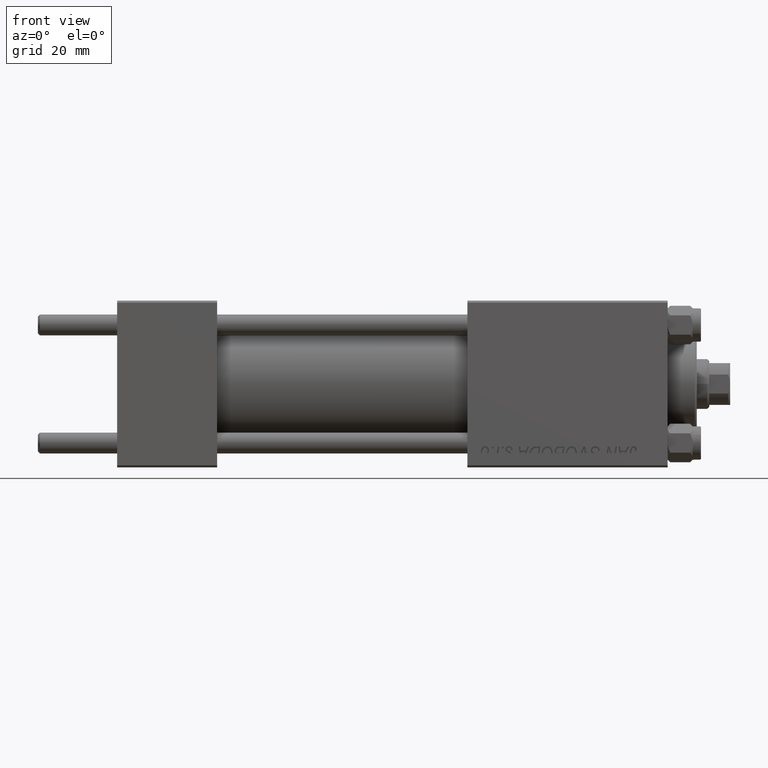
[diagram: clean part render]
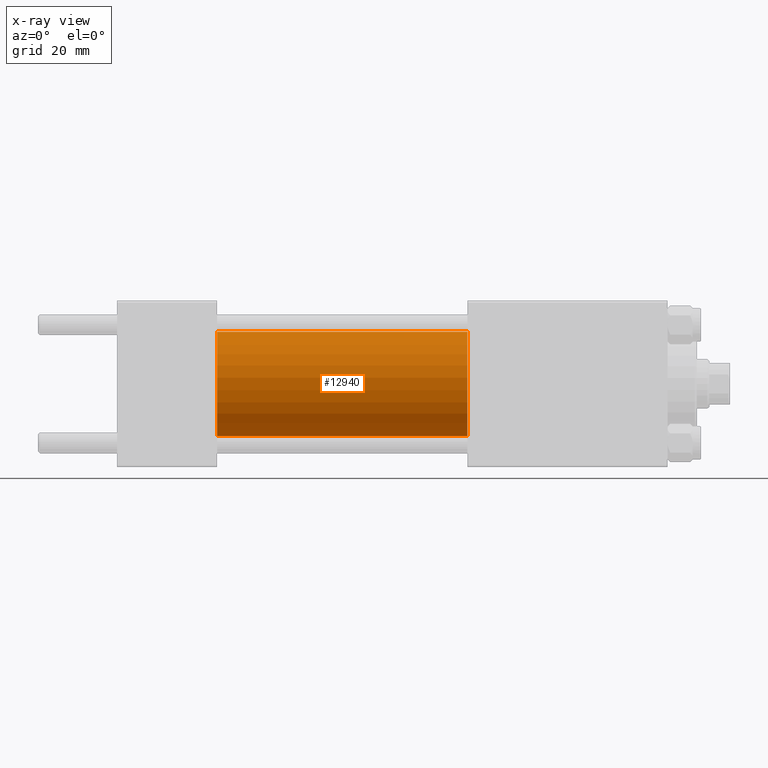
[diagram: x-ray — body ghosted, one internal face saturated and labeled with its STEP entity id]
A machine part, front view, then the same camera in x-ray: the body is ghosted and one INTERNAL B-rep face — a face not visible from any outside direction — is saturated and labeled: STEP entity #12940.
In plain terms, the highlighted cylindrical surface (partial cylindrical patch) has radius 12.5 mm, axis along (-1, -0, -0).
Its self-contained STEP definition (entity closure, byte-faithful):
#732 = DIRECTION ( 'NONE',  ( 1.000000000000000000, 0.000000000000000000, 0.000000000000000000 ) ) ;
#2445 = CIRCLE ( 'NONE', #39419, 12.49999999999999645 ) ;
#3045 = CARTESIAN_POINT ( 'NONE',  ( 24.00000000000000000, 0.000000000000000000, 12.49999999999999645 ) ) ;
#4425 = FACE_OUTER_BOUND ( 'NONE', #14150, .T. ) ;
#6792 = VERTEX_POINT ( 'NONE', #22385 ) ;
#6973 = ORIENTED_EDGE ( 'NONE', *, *, #45372, .T. ) ;
#8204 = CARTESIAN_POINT ( 'NONE',  ( 83.99999999999998579, 0.000000000000000000, 0.000000000000000000 ) ) ;
#12940 = ADVANCED_FACE ( 'NONE', ( #4425 ), #27581, .F. ) ;
#13495 = DIRECTION ( 'NONE',  ( 0.000000000000000000, 0.000000000000000000, -1.000000000000000000 ) ) ;
#13496 = CARTESIAN_POINT ( 'NONE',  ( 24.00000000000000000, 1.530808498934191127E-15, -12.49999999999999645 ) ) ;
#14150 = EDGE_LOOP ( 'NONE', ( #6973, #21968, #25195, #32844 ) ) ;
#14920 = DIRECTION ( 'NONE',  ( -1.000000000000000000, -0.000000000000000000, -0.000000000000000000 ) ) ;
#15592 = DIRECTION ( 'NONE',  ( 0.000000000000000000, 0.000000000000000000, -1.000000000000000000 ) ) ;
#15748 = DIRECTION ( 'NONE',  ( -1.000000000000000000, -0.000000000000000000, -0.000000000000000000 ) ) ;
#21968 = ORIENTED_EDGE ( 'NONE', *, *, #45305, .T. ) ;
#22048 = AXIS2_PLACEMENT_3D ( 'NONE', #8204, #15748, #42937 ) ;
#22385 = CARTESIAN_POINT ( 'NONE',  ( 83.99999999999998579, 0.000000000000000000, 12.49999999999999645 ) ) ;
#24611 = VERTEX_POINT ( 'NONE', #13496 ) ;
#25195 = ORIENTED_EDGE ( 'NONE', *, *, #32095, .F. ) ;
#25350 = CARTESIAN_POINT ( 'NONE',  ( 24.00000000000000000, 0.000000000000000000, 0.000000000000000000 ) ) ;
#26202 = LINE ( 'NONE', #41557, #27624 ) ;
#26514 = LINE ( 'NONE', #46129, #40920 ) ;
#26697 = CARTESIAN_POINT ( 'NONE',  ( 83.99999999999998579, 0.000000000000000000, 0.000000000000000000 ) ) ;
#27581 = CYLINDRICAL_SURFACE ( 'NONE', #22048, 12.49999999999999645 ) ;
#27624 = VECTOR ( 'NONE', #30221, 1000.000000000000000 ) ;
#27939 = EDGE_CURVE ( 'NONE', #6792, #28208, #26514, .T. ) ;
#28208 = VERTEX_POINT ( 'NONE', #3045 ) ;
#28603 = DIRECTION ( 'NONE',  ( 1.000000000000000000, 0.000000000000000000, 0.000000000000000000 ) ) ;
#30221 = DIRECTION ( 'NONE',  ( -1.000000000000000000, -0.000000000000000000, -0.000000000000000000 ) ) ;
#31156 = CARTESIAN_POINT ( 'NONE',  ( 83.99999999999998579, 1.530808498934191127E-15, -12.49999999999999645 ) ) ;
#32095 = EDGE_CURVE ( 'NONE', #28208, #24611, #2445, .T. ) ;
#32844 = ORIENTED_EDGE ( 'NONE', *, *, #27939, .F. ) ;
#39419 = AXIS2_PLACEMENT_3D ( 'NONE', #25350, #28603, #13495 ) ;
#40507 = CIRCLE ( 'NONE', #42118, 12.49999999999999645 ) ;
#40920 = VECTOR ( 'NONE', #14920, 1000.000000000000000 ) ;
#41557 = CARTESIAN_POINT ( 'NONE',  ( 83.99999999999998579, 1.530808498934191127E-15, -12.49999999999999645 ) ) ;
#42118 = AXIS2_PLACEMENT_3D ( 'NONE', #26697, #732, #15592 ) ;
#42937 = DIRECTION ( 'NONE',  ( 0.000000000000000000, 0.000000000000000000, 1.000000000000000000 ) ) ;
#45305 = EDGE_CURVE ( 'NONE', #48839, #24611, #26202, .T. ) ;
#45372 = EDGE_CURVE ( 'NONE', #6792, #48839, #40507, .T. ) ;
#46129 = CARTESIAN_POINT ( 'NONE',  ( 83.99999999999998579, 0.000000000000000000, 12.49999999999999645 ) ) ;
#48839 = VERTEX_POINT ( 'NONE', #31156 ) ;